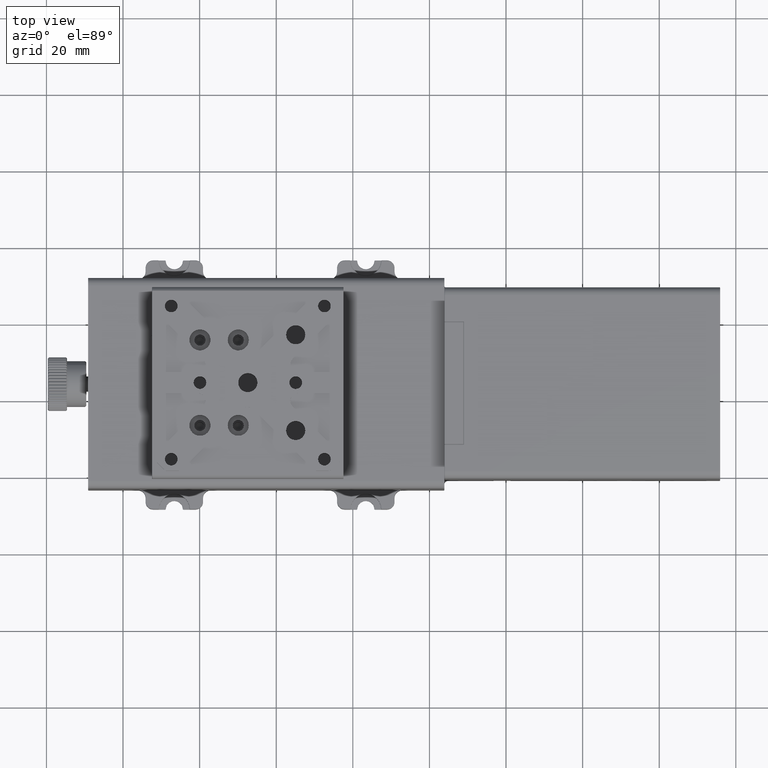
[diagram: clean part render]
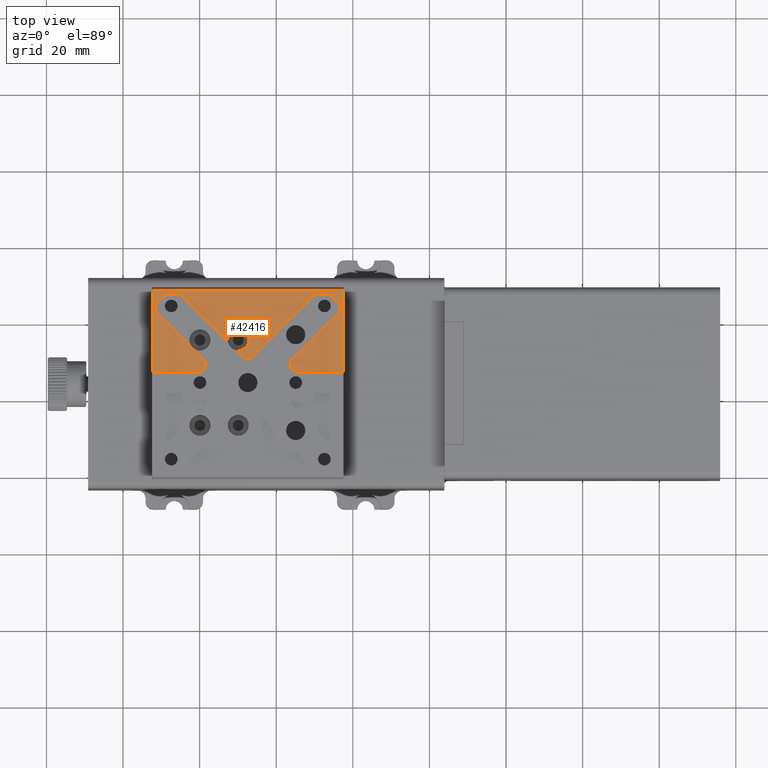
[diagram: same view with one face highlighted and labeled with its STEP entity id]
A machine part, top view. The second image highlights one B-rep face of the part: STEP entity #42416.
In plain terms, the highlighted planar face has unit normal (0, 0, 1).
Its self-contained STEP definition (entity closure, byte-faithful):
#25 = DIRECTION ( 'NONE',  ( 1.000000000000000000, 0.000000000000000000, 0.000000000000000000 ) ) ;
#749 = DIRECTION ( 'NONE',  ( 1.000000000000000000, 0.000000000000000000, 0.000000000000000000 ) ) ;
#1428 = EDGE_CURVE ( 'NONE', #50357, #48820, #26607, .T. ) ;
#1444 = CARTESIAN_POINT ( 'NONE',  ( -75.17482816559359549, 46.50842696629199935, 32.70000000000000284 ) ) ;
#2097 = EDGE_CURVE ( 'NONE', #35899, #51910, #42008, .T. ) ;
#3010 = DIRECTION ( 'NONE',  ( 0.000000000000000000, 0.000000000000000000, 1.000000000000000000 ) ) ;
#3668 = AXIS2_PLACEMENT_3D ( 'NONE', #22262, #29400, #55025 ) ;
#3720 = VERTEX_POINT ( 'NONE', #30139 ) ;
#5211 = ORIENTED_EDGE ( 'NONE', *, *, #33080, .F. ) ;
#5590 = EDGE_CURVE ( 'NONE', #58168, #21364, #9626, .T. ) ;
#5987 = CARTESIAN_POINT ( 'NONE',  ( -60.50325529034000027, 27.00842696629250028, 32.70000000000000284 ) ) ;
#6343 = DIRECTION ( 'NONE',  ( 0.000000000000000000, 0.000000000000000000, -1.000000000000000000 ) ) ;
#6585 = CARTESIAN_POINT ( 'NONE',  ( -22.42482816559354930, 47.25842696629209172, 32.70000000000000284 ) ) ;
#8995 = DIRECTION ( 'NONE',  ( -2.775557561562890365E-16, 1.000000000000000000, 0.000000000000000000 ) ) ;
#9444 = CARTESIAN_POINT ( 'NONE',  ( -71.01061460322048902, 45.17264052866509871, 32.70000000000000284 ) ) ;
#9470 = ORIENTED_EDGE ( 'NONE', *, *, #23490, .T. ) ;
#9587 = DIRECTION ( 'NONE',  ( 0.000000000000000000, 0.000000000000000000, 1.000000000000000000 ) ) ;
#9626 = CIRCLE ( 'NONE', #16364, 2.000000000000001776 ) ;
#10019 = EDGE_CURVE ( 'NONE', #41059, #30410, #24631, .T. ) ;
#10235 = CARTESIAN_POINT ( 'NONE',  ( -48.83904172796649590, 31.17264052866535096, 32.70000000000000284 ) ) ;
#10314 = ORIENTED_EDGE ( 'NONE', *, *, #24902, .T. ) ;
#10360 = ORIENTED_EDGE ( 'NONE', *, *, #81535, .T. ) ;
#10860 = LINE ( 'NONE', #36509, #75912 ) ;
#11017 = CARTESIAN_POINT ( 'NONE',  ( -72.32482816559360117, 43.75842696629199935, 32.70000000000000284 ) ) ;
#11284 = DIRECTION ( 'NONE',  ( 1.000000000000000000, 0.000000000000000000, 0.000000000000000000 ) ) ;
#11500 = VERTEX_POINT ( 'NONE', #9444 ) ;
#12975 = ORIENTED_EDGE ( 'NONE', *, *, #29148, .T. ) ;
#13195 = DIRECTION ( 'NONE',  ( 1.000000000000000000, 0.000000000000000000, 0.000000000000000000 ) ) ;
#13660 = VERTEX_POINT ( 'NONE', #29327 ) ;
#13707 = LINE ( 'NONE', #6585, #70466 ) ;
#13921 = AXIS2_PLACEMENT_3D ( 'NONE', #41570, #9587, #67202 ) ;
#14010 = CARTESIAN_POINT ( 'NONE',  ( -71.01061460322048902, 42.34421340391894262, 32.70000000000000284 ) ) ;
#14210 = ORIENTED_EDGE ( 'NONE', *, *, #81923, .T. ) ;
#14672 = ORIENTED_EDGE ( 'NONE', *, *, #18216, .T. ) ;
#14984 = VECTOR ( 'NONE', #45217, 1000.000000000000000 ) ;
#15222 = DIRECTION ( 'NONE',  ( 1.000000000000000000, 0.000000000000000000, 0.000000000000000000 ) ) ;
#15460 = CARTESIAN_POINT ( 'NONE',  ( -65.33904172796660248, 46.25842696629209883, 32.70000000000000284 ) ) ;
#15552 = CIRCLE ( 'NONE', #39718, 2.750000000000002665 ) ;
#15963 = LINE ( 'NONE', #54197, #50483 ) ;
#16353 = AXIS2_PLACEMENT_3D ( 'NONE', #15460, #47830, #21774 ) ;
#16364 = AXIS2_PLACEMENT_3D ( 'NONE', #18283, #69565, #42677 ) ;
#16832 = ORIENTED_EDGE ( 'NONE', *, *, #54161, .F. ) ;
#17113 = CARTESIAN_POINT ( 'NONE',  ( -69.67482816559359549, 52.00842696629209883, 32.70000000000000284 ) ) ;
#17850 = CARTESIAN_POINT ( 'NONE',  ( -30.21772138440699962, 46.96553374747870180, 32.70000000000000284 ) ) ;
#18077 = DIRECTION ( 'NONE',  ( 1.000000000000000000, 1.040834085586085203E-14, 0.000000000000000000 ) ) ;
#18112 = VERTEX_POINT ( 'NONE', #47074 ) ;
#18205 = ORIENTED_EDGE ( 'NONE', *, *, #36532, .T. ) ;
#18216 = EDGE_CURVE ( 'NONE', #18112, #58168, #15963, .T. ) ;
#18283 = CARTESIAN_POINT ( 'NONE',  ( -34.34640104084699885, 29.00842696629249673, 32.70000000000000284 ) ) ;
#18477 = VECTOR ( 'NONE', #32920, 1000.000000000000000 ) ;
#18561 = CIRCLE ( 'NONE', #34634, 1.000000000000000888 ) ;
#19139 = CARTESIAN_POINT ( 'NONE',  ( -69.67482816559359549, 52.00842696629209883, 32.70000000000000284 ) ) ;
#19493 = DIRECTION ( 'NONE',  ( 1.224646799147351975E-16, -1.000000000000000000, 0.000000000000000000 ) ) ;
#19633 = CARTESIAN_POINT ( 'NONE',  ( -68.51061460322040375, 47.25842696629209172, 32.70000000000000284 ) ) ;
#19907 = CARTESIAN_POINT ( 'NONE',  ( -72.42482816559360970, 27.00842696629250028, 32.70000000000000284 ) ) ;
#20982 = CIRCLE ( 'NONE', #33030, 1.000000000000000888 ) ;
#21226 = LINE ( 'NONE', #1444, #36492 ) ;
#21364 = VERTEX_POINT ( 'NONE', #54192 ) ;
#21774 = DIRECTION ( 'NONE',  ( 1.000000000000000000, -2.775557561562888827E-14, 0.000000000000000000 ) ) ;
#21950 = ORIENTED_EDGE ( 'NONE', *, *, #58677, .T. ) ;
#22185 = CIRCLE ( 'NONE', #57032, 2.000000000000001776 ) ;
#22262 = CARTESIAN_POINT ( 'NONE',  ( -25.25325529033975158, 43.75842696629209883, 32.70000000000000284 ) ) ;
#22296 = CARTESIAN_POINT ( 'NONE',  ( -69.67482816559351022, 46.50842696629209172, 32.70000000000000284 ) ) ;
#22551 = ORIENTED_EDGE ( 'NONE', *, *, #81988, .F. ) ;
#23490 = EDGE_CURVE ( 'NONE', #37371, #76269, #71587, .T. ) ;
#23591 = CARTESIAN_POINT ( 'NONE',  ( -23.25325529033974803, 43.75842696629209883, 32.70000000000000284 ) ) ;
#23746 = VECTOR ( 'NONE', #8995, 1000.000000000000000 ) ;
#23797 = VECTOR ( 'NONE', #42338, 1000.000000000000000 ) ;
#24307 = DIRECTION ( 'NONE',  ( 1.000000000000000000, 0.000000000000000000, 0.000000000000000000 ) ) ;
#24382 = CARTESIAN_POINT ( 'NONE',  ( -25.25325529033975158, 43.75842696629209883, 32.70000000000000284 ) ) ;
#24631 = LINE ( 'NONE', #19139, #14984 ) ;
#24902 = EDGE_CURVE ( 'NONE', #39230, #81673, #40951, .T. ) ;
#25185 = DIRECTION ( 'NONE',  ( 0.000000000000000000, 0.000000000000000000, -1.000000000000000000 ) ) ;
#26607 = CIRCLE ( 'NONE', #37336, 2.000000000000001776 ) ;
#26825 = DIRECTION ( 'NONE',  ( 1.000000000000000000, 0.000000000000000000, 0.000000000000000000 ) ) ;
#27090 = DIRECTION ( 'NONE',  ( 0.7071067811865535679, -0.7071067811865415775, 0.000000000000000000 ) ) ;
#27379 = DIRECTION ( 'NONE',  ( 1.000000000000000000, 3.469446951953611033E-15, 0.000000000000000000 ) ) ;
#28240 = VERTEX_POINT ( 'NONE', #73446 ) ;
#29148 = EDGE_CURVE ( 'NONE', #75690, #28240, #22185, .T. ) ;
#29327 = CARTESIAN_POINT ( 'NONE',  ( -23.83904172796665222, 45.17264052866520530, 32.70000000000000284 ) ) ;
#29400 = DIRECTION ( 'NONE',  ( 0.000000000000000000, 0.000000000000000000, -1.000000000000000000 ) ) ;
#30139 = CARTESIAN_POINT ( 'NONE',  ( -25.63193494678010254, 46.96553374747870180, 32.70000000000000284 ) ) ;
#30205 = DIRECTION ( 'NONE',  ( 0.000000000000000000, 0.000000000000000000, 1.000000000000000000 ) ) ;
#30291 = VERTEX_POINT ( 'NONE', #75595 ) ;
#30358 = DIRECTION ( 'NONE',  ( -1.000000000000000000, 0.000000000000000000, 0.000000000000000000 ) ) ;
#30410 = VERTEX_POINT ( 'NONE', #74783 ) ;
#30680 = LINE ( 'NONE', #22296, #62211 ) ;
#32068 = ORIENTED_EDGE ( 'NONE', *, *, #47116, .T. ) ;
#32401 = EDGE_CURVE ( 'NONE', #65989, #30291, #20982, .T. ) ;
#32920 = DIRECTION ( 'NONE',  ( -1.000000000000000000, 0.000000000000000000, 0.000000000000000000 ) ) ;
#33030 = AXIS2_PLACEMENT_3D ( 'NONE', #50923, #6343, #25 ) ;
#33080 = EDGE_CURVE ( 'NONE', #50357, #81467, #74277, .T. ) ;
#33292 = CARTESIAN_POINT ( 'NONE',  ( -69.59640104084739676, 43.75842696629204909, 32.70000000000000284 ) ) ;
#33497 = DIRECTION ( 'NONE',  ( 1.000000000000000000, 0.000000000000000000, 0.000000000000000000 ) ) ;
#34256 = ORIENTED_EDGE ( 'NONE', *, *, #2097, .F. ) ;
#34634 = AXIS2_PLACEMENT_3D ( 'NONE', #70788, #51034, #13195 ) ;
#35899 = VERTEX_POINT ( 'NONE', #79194 ) ;
#36492 = VECTOR ( 'NONE', #27090, 1000.000000000000000 ) ;
#36509 = CARTESIAN_POINT ( 'NONE',  ( -22.42482816559354930, 47.25842696629209172, 32.70000000000000284 ) ) ;
#36532 = EDGE_CURVE ( 'NONE', #66124, #78913, #64847, .T. ) ;
#36553 = CARTESIAN_POINT ( 'NONE',  ( -68.51061460322040375, 46.25842696629209883, 32.70000000000000284 ) ) ;
#36759 = CIRCLE ( 'NONE', #50207, 2.000000000000001776 ) ;
#37336 = AXIS2_PLACEMENT_3D ( 'NONE', #67341, #3010, #15222 ) ;
#37371 = VERTEX_POINT ( 'NONE', #11017 ) ;
#37407 = EDGE_CURVE ( 'NONE', #68822, #11500, #36759, .T. ) ;
#37743 = ORIENTED_EDGE ( 'NONE', *, *, #5590, .T. ) ;
#38304 = CARTESIAN_POINT ( 'NONE',  ( -26.33904172796664866, 47.25842696629209172, 32.70000000000000284 ) ) ;
#39230 = VERTEX_POINT ( 'NONE', #73990 ) ;
#39512 = CARTESIAN_POINT ( 'NONE',  ( -72.32482816559360117, 43.75842696629199935, 32.70000000000000284 ) ) ;
#39718 = AXIS2_PLACEMENT_3D ( 'NONE', #71370, #25185, #26825 ) ;
#39917 = CIRCLE ( 'NONE', #3668, 1.999999999999998224 ) ;
#40361 = LINE ( 'NONE', #39512, #50653 ) ;
#40539 = CIRCLE ( 'NONE', #16353, 1.000000000000000888 ) ;
#40951 = LINE ( 'NONE', #66603, #23746 ) ;
#41059 = VERTEX_POINT ( 'NONE', #53230 ) ;
#41570 = CARTESIAN_POINT ( 'NONE',  ( -72.42482816559360970, 49.25842696629209883, 32.70000000000000284 ) ) ;
#41656 = DIRECTION ( 'NONE',  ( 1.000000000000000000, 0.000000000000000000, 0.000000000000000000 ) ) ;
#42008 = LINE ( 'NONE', #67644, #63196 ) ;
#42039 = CARTESIAN_POINT ( 'NONE',  ( -35.76061460322009822, 30.42264052866560320, 32.70000000000000284 ) ) ;
#42338 = DIRECTION ( 'NONE',  ( -0.7071067811865540120, 0.7071067811865410224, 0.000000000000000000 ) ) ;
#42416 = ADVANCED_FACE ( 'NONE', ( #52912 ), #54158, .T. ) ;
#42677 = DIRECTION ( 'NONE',  ( 1.000000000000000000, 0.000000000000000000, 0.000000000000000000 ) ) ;
#43368 = AXIS2_PLACEMENT_3D ( 'NONE', #36553, #75642, #43720 ) ;
#43445 = VECTOR ( 'NONE', #45199, 1000.000000000000000 ) ;
#43557 = EDGE_CURVE ( 'NONE', #81673, #51910, #51481, .T. ) ;
#43720 = DIRECTION ( 'NONE',  ( 1.000000000000000000, 0.000000000000000000, 0.000000000000000000 ) ) ;
#43729 = LINE ( 'NONE', #50438, #52982 ) ;
#44231 = LINE ( 'NONE', #82888, #62884 ) ;
#45038 = CARTESIAN_POINT ( 'NONE',  ( -72.42482816559360970, 27.00842696629250028, 32.70000000000000284 ) ) ;
#45199 = DIRECTION ( 'NONE',  ( -2.775557561562890365E-16, 1.000000000000000000, 0.000000000000000000 ) ) ;
#45217 = DIRECTION ( 'NONE',  ( -0.7071067811865540120, 0.7071067811865410224, 0.000000000000000000 ) ) ;
#45219 = ORIENTED_EDGE ( 'NONE', *, *, #59967, .T. ) ;
#45365 = ORIENTED_EDGE ( 'NONE', *, *, #32401, .T. ) ;
#45667 = EDGE_CURVE ( 'NONE', #78913, #82153, #10860, .T. ) ;
#45696 = DIRECTION ( 'NONE',  ( 0.000000000000000000, 0.000000000000000000, -1.000000000000000000 ) ) ;
#45765 = EDGE_CURVE ( 'NONE', #41059, #51140, #15552, .T. ) ;
#47074 = CARTESIAN_POINT ( 'NONE',  ( -23.83904172796665222, 42.34421340391904920, 32.70000000000000284 ) ) ;
#47116 = EDGE_CURVE ( 'NONE', #35899, #37371, #40361, .T. ) ;
#47830 = DIRECTION ( 'NONE',  ( 0.000000000000000000, 0.000000000000000000, -1.000000000000000000 ) ) ;
#48820 = VERTEX_POINT ( 'NONE', #80611 ) ;
#48992 = VECTOR ( 'NONE', #19493, 1000.000000000000000 ) ;
#49243 = CARTESIAN_POINT ( 'NONE',  ( -22.52482816559355427, 48.31199234157740108, 32.70000000000000284 ) ) ;
#50080 = LINE ( 'NONE', #45038, #64214 ) ;
#50207 = AXIS2_PLACEMENT_3D ( 'NONE', #33292, #59323, #27379 ) ;
#50357 = VERTEX_POINT ( 'NONE', #10235 ) ;
#50438 = CARTESIAN_POINT ( 'NONE',  ( -50.17482816559350312, 71.50842696629210593, 32.70000000000000284 ) ) ;
#50483 = VECTOR ( 'NONE', #74360, 1000.000000000000114 ) ;
#50653 = VECTOR ( 'NONE', #65167, 1000.000000000000000 ) ;
#50923 = CARTESIAN_POINT ( 'NONE',  ( -29.51061460322044994, 46.25842696629209883, 32.70000000000000284 ) ) ;
#51034 = DIRECTION ( 'NONE',  ( 0.000000000000000000, 0.000000000000000000, -1.000000000000000000 ) ) ;
#51140 = VERTEX_POINT ( 'NONE', #60508 ) ;
#51481 = LINE ( 'NONE', #59055, #43445 ) ;
#51597 = CIRCLE ( 'NONE', #73089, 1.999999999999998224 ) ;
#51910 = VERTEX_POINT ( 'NONE', #49243 ) ;
#51984 = DIRECTION ( 'NONE',  ( 1.000000000000000000, 0.000000000000000000, 0.000000000000000000 ) ) ;
#52528 = CARTESIAN_POINT ( 'NONE',  ( -72.32482816559360117, 27.00842696629250028, 32.70000000000000284 ) ) ;
#52912 = FACE_OUTER_BOUND ( 'NONE', #57731, .T. ) ;
#52982 = VECTOR ( 'NONE', #76091, 1000.000000000000114 ) ;
#53230 = CARTESIAN_POINT ( 'NONE',  ( -52.64027763838929985, 34.97387643908810162, 32.70000000000000284 ) ) ;
#53928 = EDGE_CURVE ( 'NONE', #82153, #30410, #40539, .T. ) ;
#54158 = PLANE ( 'NONE',  #13921 ) ;
#54161 = EDGE_CURVE ( 'NONE', #68822, #28240, #21226, .T. ) ;
#54192 = CARTESIAN_POINT ( 'NONE',  ( -34.34640104084699885, 27.00842696629250028, 32.70000000000000284 ) ) ;
#54197 = CARTESIAN_POINT ( 'NONE',  ( -44.67482816559355285, 21.50842696629209883, 32.70000000000000284 ) ) ;
#54259 = CARTESIAN_POINT ( 'NONE',  ( -49.92482816559359549, 35.40842696629209740, 32.70000000000000284 ) ) ;
#55025 = DIRECTION ( 'NONE',  ( 1.000000000000000000, 0.000000000000000000, 0.000000000000000000 ) ) ;
#56376 = ORIENTED_EDGE ( 'NONE', *, *, #53928, .T. ) ;
#57032 = AXIS2_PLACEMENT_3D ( 'NONE', #76017, #30205, #24307 ) ;
#57264 = EDGE_CURVE ( 'NONE', #66124, #11500, #30680, .T. ) ;
#57731 = EDGE_LOOP ( 'NONE', ( #32068, #9470, #22551, #12975, #16832, #61007, #62901, #18205, #78826, #56376, #81061, #79449, #58006, #45219, #5211, #79903, #14210, #45365, #21950, #10360, #75495, #65199, #68087, #14672, #37743, #64576, #10314, #70085, #34256 ) ) ;
#58006 = ORIENTED_EDGE ( 'NONE', *, *, #73722, .T. ) ;
#58168 = VERTEX_POINT ( 'NONE', #42039 ) ;
#58312 = AXIS2_PLACEMENT_3D ( 'NONE', #54259, #60971, #41656 ) ;
#58677 = EDGE_CURVE ( 'NONE', #30291, #81973, #13707, .T. ) ;
#59055 = CARTESIAN_POINT ( 'NONE',  ( -22.52482816559355427, 48.31199234157740108, 32.70000000000000284 ) ) ;
#59323 = DIRECTION ( 'NONE',  ( 0.000000000000000000, 0.000000000000000000, -1.000000000000000000 ) ) ;
#59534 = DIRECTION ( 'NONE',  ( 0.000000000000000000, 0.000000000000000000, -1.000000000000000000 ) ) ;
#59967 = EDGE_CURVE ( 'NONE', #78842, #81467, #61287, .T. ) ;
#60508 = CARTESIAN_POINT ( 'NONE',  ( -52.67482816559360259, 35.40842696629209740, 32.70000000000000284 ) ) ;
#60971 = DIRECTION ( 'NONE',  ( 0.000000000000000000, 0.000000000000000000, -1.000000000000000000 ) ) ;
#61007 = ORIENTED_EDGE ( 'NONE', *, *, #37407, .T. ) ;
#61287 = CIRCLE ( 'NONE', #72033, 2.750000000000002665 ) ;
#61615 = VERTEX_POINT ( 'NONE', #23591 ) ;
#61972 = EDGE_CURVE ( 'NONE', #61615, #18112, #39917, .T. ) ;
#62211 = VECTOR ( 'NONE', #73582, 1000.000000000000000 ) ;
#62316 = CIRCLE ( 'NONE', #58312, 2.750000000000002665 ) ;
#62884 = VECTOR ( 'NONE', #76580, 1000.000000000000114 ) ;
#62901 = ORIENTED_EDGE ( 'NONE', *, *, #57264, .F. ) ;
#63196 = VECTOR ( 'NONE', #749, 1000.000000000000000 ) ;
#64214 = VECTOR ( 'NONE', #30358, 1000.000000000000000 ) ;
#64264 = EDGE_CURVE ( 'NONE', #39230, #21364, #64448, .T. ) ;
#64448 = LINE ( 'NONE', #19907, #18477 ) ;
#64480 = CARTESIAN_POINT ( 'NONE',  ( -69.21772138440699962, 46.96553374747870180, 32.70000000000000284 ) ) ;
#64576 = ORIENTED_EDGE ( 'NONE', *, *, #64264, .F. ) ;
#64847 = CIRCLE ( 'NONE', #43368, 1.000000000000000888 ) ;
#65167 = DIRECTION ( 'NONE',  ( 1.224646799147351975E-16, -1.000000000000000000, 0.000000000000000000 ) ) ;
#65199 = ORIENTED_EDGE ( 'NONE', *, *, #73858, .T. ) ;
#65295 = CARTESIAN_POINT ( 'NONE',  ( -22.52482816559355427, 43.75842696629215567, 32.70000000000000284 ) ) ;
#65989 = VERTEX_POINT ( 'NONE', #17850 ) ;
#66124 = VERTEX_POINT ( 'NONE', #64480 ) ;
#66603 = CARTESIAN_POINT ( 'NONE',  ( -22.52482816559355427, 43.75842696629215567, 32.70000000000000284 ) ) ;
#67202 = DIRECTION ( 'NONE',  ( 1.000000000000000000, 0.000000000000000000, 0.000000000000000000 ) ) ;
#67341 = CARTESIAN_POINT ( 'NONE',  ( -47.42482816559339653, 32.58685409103844677, 32.70000000000000284 ) ) ;
#67644 = CARTESIAN_POINT ( 'NONE',  ( -72.42482816559360970, 48.31199234157740108, 32.70000000000000284 ) ) ;
#68087 = ORIENTED_EDGE ( 'NONE', *, *, #61972, .T. ) ;
#68822 = VERTEX_POINT ( 'NONE', #14010 ) ;
#69565 = DIRECTION ( 'NONE',  ( 0.000000000000000000, 0.000000000000000000, 1.000000000000000000 ) ) ;
#70085 = ORIENTED_EDGE ( 'NONE', *, *, #43557, .T. ) ;
#70466 = VECTOR ( 'NONE', #51984, 1000.000000000000000 ) ;
#70788 = CARTESIAN_POINT ( 'NONE',  ( -26.33904172796664866, 46.25842696629209883, 32.70000000000000284 ) ) ;
#71370 = CARTESIAN_POINT ( 'NONE',  ( -49.92482816559359549, 35.40842696629209740, 32.70000000000000284 ) ) ;
#71587 = LINE ( 'NONE', #76665, #48992 ) ;
#72033 = AXIS2_PLACEMENT_3D ( 'NONE', #77225, #59534, #33497 ) ;
#73089 = AXIS2_PLACEMENT_3D ( 'NONE', #24382, #45696, #18077 ) ;
#73446 = CARTESIAN_POINT ( 'NONE',  ( -59.08904172796689380, 30.42264052866560320, 32.70000000000000284 ) ) ;
#73582 = DIRECTION ( 'NONE',  ( -0.7071067811865415775, -0.7071067811865535679, 0.000000000000000000 ) ) ;
#73722 = EDGE_CURVE ( 'NONE', #51140, #78842, #62316, .T. ) ;
#73858 = EDGE_CURVE ( 'NONE', #13660, #61615, #51597, .T. ) ;
#73861 = EDGE_CURVE ( 'NONE', #3720, #13660, #43729, .T. ) ;
#73990 = CARTESIAN_POINT ( 'NONE',  ( -22.52482816559355427, 27.00842696629250028, 32.70000000000000284 ) ) ;
#74277 = LINE ( 'NONE', #17113, #23797 ) ;
#74360 = DIRECTION ( 'NONE',  ( -0.7071067811865474617, -0.7071067811865474617, 0.000000000000000000 ) ) ;
#74783 = CARTESIAN_POINT ( 'NONE',  ( -64.63193494678009188, 46.96553374747870180, 32.70000000000000284 ) ) ;
#75023 = CARTESIAN_POINT ( 'NONE',  ( -50.35937869279749890, 32.69297749349635041, 32.70000000000000284 ) ) ;
#75495 = ORIENTED_EDGE ( 'NONE', *, *, #73861, .T. ) ;
#75595 = CARTESIAN_POINT ( 'NONE',  ( -29.51061460322044994, 47.25842696629209172, 32.70000000000000284 ) ) ;
#75642 = DIRECTION ( 'NONE',  ( 0.000000000000000000, 0.000000000000000000, -1.000000000000000000 ) ) ;
#75690 = VERTEX_POINT ( 'NONE', #5987 ) ;
#75912 = VECTOR ( 'NONE', #11284, 1000.000000000000000 ) ;
#76017 = CARTESIAN_POINT ( 'NONE',  ( -60.50325529034000027, 29.00842696629249673, 32.70000000000000284 ) ) ;
#76091 = DIRECTION ( 'NONE',  ( 0.7071067811865474617, -0.7071067811865474617, 0.000000000000000000 ) ) ;
#76269 = VERTEX_POINT ( 'NONE', #52528 ) ;
#76580 = DIRECTION ( 'NONE',  ( 0.7071067811865474617, 0.7071067811865474617, 0.000000000000000000 ) ) ;
#76665 = CARTESIAN_POINT ( 'NONE',  ( -72.32482816559360117, 27.00842696629250028, 32.70000000000000284 ) ) ;
#77225 = CARTESIAN_POINT ( 'NONE',  ( -49.92482816559359549, 35.40842696629209740, 32.70000000000000284 ) ) ;
#78470 = CARTESIAN_POINT ( 'NONE',  ( -47.17482816559360259, 35.40842696629209740, 32.70000000000000284 ) ) ;
#78826 = ORIENTED_EDGE ( 'NONE', *, *, #45667, .T. ) ;
#78842 = VERTEX_POINT ( 'NONE', #78470 ) ;
#78913 = VERTEX_POINT ( 'NONE', #19633 ) ;
#79194 = CARTESIAN_POINT ( 'NONE',  ( -72.32482816559360117, 48.31199234157740108, 32.70000000000000284 ) ) ;
#79449 = ORIENTED_EDGE ( 'NONE', *, *, #45765, .T. ) ;
#79903 = ORIENTED_EDGE ( 'NONE', *, *, #1428, .T. ) ;
#80611 = CARTESIAN_POINT ( 'NONE',  ( -46.01061460322029717, 31.17264052866535096, 32.70000000000000284 ) ) ;
#80702 = CARTESIAN_POINT ( 'NONE',  ( -65.33904172796660248, 47.25842696629209172, 32.70000000000000284 ) ) ;
#81061 = ORIENTED_EDGE ( 'NONE', *, *, #10019, .F. ) ;
#81467 = VERTEX_POINT ( 'NONE', #75023 ) ;
#81535 = EDGE_CURVE ( 'NONE', #81973, #3720, #18561, .T. ) ;
#81673 = VERTEX_POINT ( 'NONE', #65295 ) ;
#81923 = EDGE_CURVE ( 'NONE', #48820, #65989, #44231, .T. ) ;
#81973 = VERTEX_POINT ( 'NONE', #38304 ) ;
#81988 = EDGE_CURVE ( 'NONE', #75690, #76269, #50080, .T. ) ;
#82153 = VERTEX_POINT ( 'NONE', #80702 ) ;
#82888 = CARTESIAN_POINT ( 'NONE',  ( -50.17482816559359549, 27.00842696629209883, 32.70000000000000284 ) ) ;